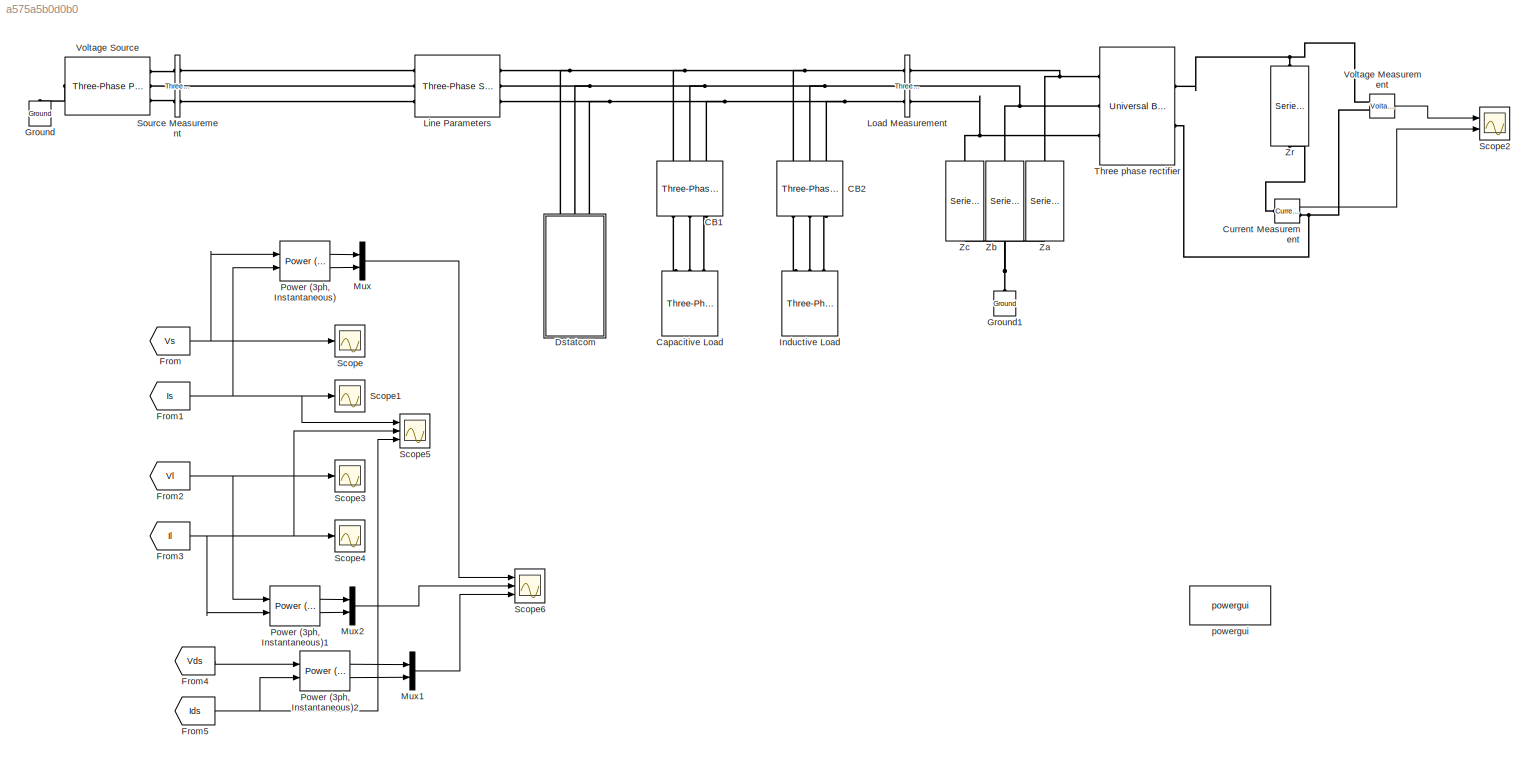
MODEL slx_a575a5b0d0b0
KIND model
CONFIG AbsTol = auto
CONFIG EnableMultiTasking = off
CONFIG FixedStep = auto
CONFIG MaxStep = auto
CONFIG MinStep = auto
CONFIG RelTol = 1e-3
CONFIG SampleTimeConstraint = Unconstrained
CONFIG Solver = VariableStepAuto
CONFIG SolverName = VariableStepAuto
CONFIG StartTime = 0.0
CONFIG StopTime = 2
BLOCK [Reference] CB1  REF=powerlib/Elements/Three-Phase Breaker
  Ports = [0, 0, 0, 0, 0, 3, 3]
  SourceBlock = powerlib/Elements/Three-Phase Breaker
  SourceProductBaseCode = PS
  SourceProductName = Simscape Electrical
  SourceType = Three-Phase Breaker
BLOCK [Reference] CB2   REF=powerlib/Elements/Three-Phase Breaker
  Ports = [0, 0, 0, 0, 0, 3, 3]
  SourceBlock = powerlib/Elements/Three-Phase Breaker
  SourceProductBaseCode = PS
  SourceProductName = Simscape Electrical
  SourceType = Three-Phase Breaker
BLOCK [Reference] Capacitive Load  REF=powerlib/Elements/Three-Phase
Series RLC Load
  AttributesFormatString = \n
  Ports = [0, 0, 0, 0, 0, 3]
  SourceBlock = powerlib/Elements/Three-Phase\nSeries RLC Load
  SourceProductBaseCode = PS
  SourceProductName = Simscape Electrical
  SourceType = Three-Phase Series RLC Load
BLOCK [Reference] Current Measurement  REF=powerlib/Measurements/Current Measurement
  Ports = [0, 1, 0, 0, 0, 1, 1]
  SourceBlock = powerlib/Measurements/Current Measurement
  SourceProductBaseCode = PS
  SourceProductName = Simscape Electrical
  SourceType = Current Measurement
  UserDataPersistent = on
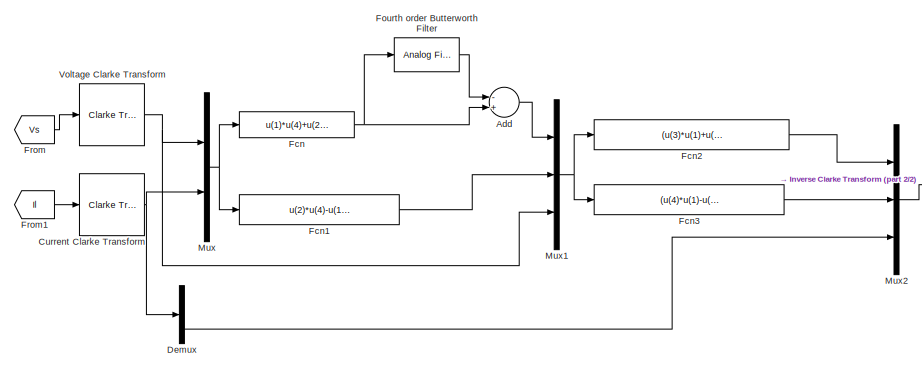
[diagram: Dstatcom - part 1/2, top left region]
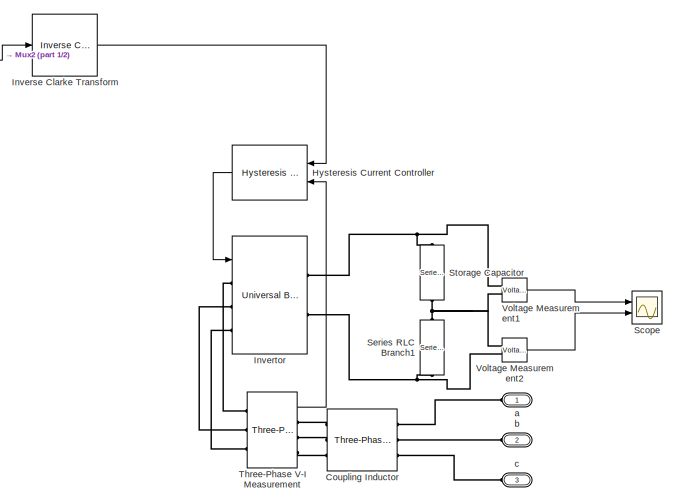
[diagram: Dstatcom - part 2/2, right side, full height]
BLOCK [SubSystem] Dstatcom
  Ports = [0, 0, 0, 0, 0, 3]
  RequestExecContextInheritance = off
BLOCK [Sum] Dstatcom/Add
  InputSameDT = off
  Inputs = -+
  OutDataTypeStr = Inherit: Inherit via internal rule
  Ports = [2, 1]
  SaturateOnIntegerOverflow = off
BLOCK [Reference] Dstatcom/Coupling Inductor   REF=powerlib/Elements/Three-Phase
Series RLC Branch
  AttributesFormatString = \n
  Ports = [0, 0, 0, 0, 0, 3, 3]
  SourceBlock = powerlib/Elements/Three-Phase\nSeries RLC Branch
  SourceProductBaseCode = PS
  SourceProductName = Simscape Electrical
  SourceType = Three-Phase Series RLC Branch
BLOCK [Reference] Dstatcom/Current Clarke Transform  REF=eeTransforms/Clarke Transform
  Ports = [1, 1]
  SourceBlock = eeTransforms/Clarke Transform
  SourceProductBaseCode = PS
  SourceProductName = Simscape Electrical
  SourceType = Clarke Transform
BLOCK [Demux] Dstatcom/Demux
  DisplayOption = bar
  Outputs = 3
  Ports = [1, 3]
BLOCK [Fcn] Dstatcom/Fcn
  Expr = u(1)*u(4)+u(2)*u(5)
BLOCK [Fcn] Dstatcom/Fcn1
  Expr = u(2)*u(4)-u(1)*u(5)
BLOCK [Fcn] Dstatcom/Fcn2
  Expr = (u(3)*u(1)+u(4)*u(2))*((1)/(u(3)^2+u(4)^2))
BLOCK [Fcn] Dstatcom/Fcn3
  Expr = (u(4)*u(1)-u(3)*u(2))*((1)/(u(3)^2+u(4)^2))
BLOCK [Reference] Dstatcom/Fourth order Butterworth Filter  REF=dsparch4/Analog
Filter Design
  Ports = [1, 1]
  SourceBlock = dsparch4/Analog\nFilter Design
  SourceProductBaseCode = DS
  SourceProductName = DSP System Toolbox
  SourceType = Analog Filter Design
BLOCK [From] Dstatcom/From
  GotoTag = Vs
  TagVisibility = global
BLOCK [From] Dstatcom/From1
  GotoTag = Il
  TagVisibility = global
BLOCK [Reference] Dstatcom/Hysteresis Current Controller   REF=eeHysteresisControl/Hysteresis Current
Controller
(Three-Phase)
  Ports = [2, 1]
  SourceBlock = eeHysteresisControl/Hysteresis Current\nController\n(Three-Phase)
  SourceProductBaseCode = PS
  SourceProductName = Simscape Electrical
  SourceType = Hysteresis Current Controller (Three-Phase)
BLOCK [Reference] Dstatcom/Inverse Clarke Transform  REF=eeTransforms/Inverse
Clarke Transform
  Ports = [1, 1]
  SourceBlock = eeTransforms/Inverse\nClarke Transform
  SourceProductBaseCode = PS
  SourceProductName = Simscape Electrical
  SourceType = Inverse Clarke Transform
BLOCK [Reference] Dstatcom/Invertor  REF=powerlib/Power
Electronics/Universal Bridge
  Ports = [1, 0, 0, 0, 0, 3, 2]
  SourceBlock = powerlib/Power\nElectronics/Universal Bridge
  SourceProductBaseCode = PS
  SourceProductName = Simscape Electrical
  SourceType = Universal Bridge
BLOCK [Mux] Dstatcom/Mux
  DisplayOption = bar
  Inputs = 2
  Ports = [2, 1]
BLOCK [Mux] Dstatcom/Mux1
  DisplayOption = bar
  Inputs = 3
  Ports = [3, 1]
BLOCK [Mux] Dstatcom/Mux2
  DisplayOption = bar
  Inputs = 3
  Ports = [3, 1]
BLOCK [Scope] Dstatcom/Scope
  Floating = off
  NumInputPorts = 2
  Ports = [2]
  ScopeSpecificationString = Simulink.scopes.TimeScopeBlockCfg('CurrentConfiguration', extmgr.ConfigurationSet(extmgr.Configuration('Core','General UI',true),extmgr.Configuration('Core','Source UI',true),extmgr.Configuration('Sources','WiredSimulink',true,'DataLoggingVariableName','ScopeData3'),extmgr.Configuration('Visuals','Time Domain',true),extmgr.Configuration('Tools','Plot Navigation',true),extmgr.Configuration('Tools',...<+40ch>
BLOCK [Reference] Dstatcom/Series RLC Branch1  REF=powerlib/Elements/Series RLC Branch
  Ports = [0, 0, 0, 0, 0, 1, 1]
  SourceBlock = powerlib/Elements/Series RLC Branch
  SourceProductBaseCode = PS
  SourceProductName = Simscape Electrical
  SourceType = Series RLC Branch
BLOCK [Reference] Dstatcom/Storage Capacitor  REF=powerlib/Elements/Series RLC Branch
  Ports = [0, 0, 0, 0, 0, 1, 1]
  SourceBlock = powerlib/Elements/Series RLC Branch
  SourceProductBaseCode = PS
  SourceProductName = Simscape Electrical
  SourceType = Series RLC Branch
BLOCK [Reference] Dstatcom/Three-Phase V-I Measurement  REF=powerlib/Measurements/Three-Phase
V-I Measurement
  Ports = [0, 1, 0, 0, 0, 3, 3]
  SourceBlock = powerlib/Measurements/Three-Phase\nV-I Measurement
  SourceProductBaseCode = PS
  SourceProductName = Simscape Electrical
  SourceType = Three-Phase VI Measurement
BLOCK [Reference] Dstatcom/Voltage Clarke Transform  REF=eeTransforms/Clarke Transform
  Ports = [1, 1]
  SourceBlock = eeTransforms/Clarke Transform
  SourceProductBaseCode = PS
  SourceProductName = Simscape Electrical
  SourceType = Clarke Transform
BLOCK [Reference] Dstatcom/Voltage Measurement1  REF=powerlib/Measurements/Voltage Measurement
  Ports = [0, 1, 0, 0, 0, 2]
  SourceBlock = powerlib/Measurements/Voltage Measurement
  SourceProductBaseCode = PS
  SourceProductName = Simscape Electrical
  SourceType = Voltage Measurement
  UserDataPersistent = on
BLOCK [Reference] Dstatcom/Voltage Measurement2  REF=powerlib/Measurements/Voltage Measurement
  Ports = [0, 1, 0, 0, 0, 2]
  SourceBlock = powerlib/Measurements/Voltage Measurement
  SourceProductBaseCode = PS
  SourceProductName = Simscape Electrical
  SourceType = Voltage Measurement
  UserDataPersistent = on
BLOCK [PMIOPort] Dstatcom/a
  Side = Left
BLOCK [PMIOPort] Dstatcom/b
  Port = 2
  Side = Left
BLOCK [PMIOPort] Dstatcom/c
  Port = 3
  Side = Left
BLOCK [From] From
  GotoTag = Vs
  TagVisibility = global
BLOCK [From] From1
  GotoTag = Is
  TagVisibility = global
BLOCK [From] From2
  GotoTag = Vl
  TagVisibility = global
BLOCK [From] From3
  GotoTag = Il
  TagVisibility = global
BLOCK [From] From4
  GotoTag = Vds
BLOCK [From] From5
  GotoTag = Ids
BLOCK [Reference] Ground  REF=powerlib/Elements/Ground
  Ports = [0, 0, 0, 0, 0, 1]
  SourceBlock = powerlib/Elements/Ground
  SourceProductBaseCode = PS
  SourceProductName = Simscape Electrical
  SourceType = Ground
BLOCK [Reference] Ground1  REF=powerlib/Elements/Ground
  Ports = [0, 0, 0, 0, 0, 1]
  SourceBlock = powerlib/Elements/Ground
  SourceProductBaseCode = PS
  SourceProductName = Simscape Electrical
  SourceType = Ground
BLOCK [Reference] Inductive Load  REF=powerlib/Elements/Three-Phase
Series RLC Load
  AttributesFormatString = \n
  Ports = [0, 0, 0, 0, 0, 3]
  SourceBlock = powerlib/Elements/Three-Phase\nSeries RLC Load
  SourceProductBaseCode = PS
  SourceProductName = Simscape Electrical
  SourceType = Three-Phase Series RLC Load
BLOCK [Reference] Line Parameters  REF=powerlib/Elements/Three-Phase
Series RLC Branch
  AttributesFormatString = \n
  Ports = [0, 0, 0, 0, 0, 3, 3]
  SourceBlock = powerlib/Elements/Three-Phase\nSeries RLC Branch
  SourceProductBaseCode = PS
  SourceProductName = Simscape Electrical
  SourceType = Three-Phase Series RLC Branch
BLOCK [Reference] Load Measurement  REF=powerlib/Measurements/Three-Phase
V-I Measurement
  Ports = [0, 0, 0, 0, 0, 3, 3]
  SourceBlock = powerlib/Measurements/Three-Phase\nV-I Measurement
  SourceProductBaseCode = PS
  SourceProductName = Simscape Electrical
  SourceType = Three-Phase VI Measurement
BLOCK [Mux] Mux
  DisplayOption = bar
  Inputs = 2
  Ports = [2, 1]
BLOCK [Mux] Mux1
  DisplayOption = bar
  Inputs = 2
  Ports = [2, 1]
BLOCK [Mux] Mux2
  DisplayOption = bar
  Inputs = 2
  Ports = [2, 1]
BLOCK [Reference] Power (3ph, Instantaneous)  REF=powerlib_meascontrol/Measurements/Power
(3ph, Instantaneous)
  Ports = [2, 2]
  SourceBlock = powerlib_meascontrol/Measurements/Power\n(3ph, Instantaneous)
  SourceProductBaseCode = PS
  SourceProductName = Simscape Electrical
  SourceType = Power (3ph, Instantaneous)
BLOCK [Reference] Power (3ph, Instantaneous)1  REF=powerlib_meascontrol/Measurements/Power
(3ph, Instantaneous)
  Ports = [2, 2]
  SourceBlock = powerlib_meascontrol/Measurements/Power\n(3ph, Instantaneous)
  SourceProductBaseCode = PS
  SourceProductName = Simscape Electrical
  SourceType = Power (3ph, Instantaneous)
BLOCK [Reference] Power (3ph, Instantaneous)2  REF=powerlib_meascontrol/Measurements/Power
(3ph, Instantaneous)
  Ports = [2, 2]
  SourceBlock = powerlib_meascontrol/Measurements/Power\n(3ph, Instantaneous)
  SourceProductBaseCode = PS
  SourceProductName = Simscape Electrical
  SourceType = Power (3ph, Instantaneous)
BLOCK [Scope] Scope
  Floating = off
  NumInputPorts = 1
  Ports = [1]
  ScopeSpecificationString = Simulink.scopes.TimeScopeBlockCfg('CurrentConfiguration', extmgr.ConfigurationSet(extmgr.Configuration('Core','General UI',true),extmgr.Configuration('Core','Source UI',true),extmgr.Configuration('Sources','WiredSimulink',true,'DataLoggingVariableName','Voltagesource','DataLogging',true,'DataLoggingDecimateData',true,'DataLoggingDecimation','1'),extmgr.Configuration('Visuals','Time Domain',true,'S...<+1538ch>
BLOCK [Scope] Scope1
  Floating = off
  NumInputPorts = 1
  Ports = [1]
  ScopeSpecificationString = Simulink.scopes.TimeScopeBlockCfg('CurrentConfiguration', extmgr.ConfigurationSet(extmgr.Configuration('Core','General UI',true),extmgr.Configuration('Core','Source UI',true),extmgr.Configuration('Sources','WiredSimulink',true,'DataLoggingVariableName','Sourcecurrent','DataLogging',true,'DataLoggingDecimateData',true,'DataLoggingDecimation','1'),extmgr.Configuration('Visuals','Time Domain',true,'S...<+1505ch>
BLOCK [Scope] Scope2
  Floating = off
  NumInputPorts = 2
  Ports = [2]
  ScopeSpecificationString = Simulink.scopes.TimeScopeBlockCfg('CurrentConfiguration', extmgr.ConfigurationSet(extmgr.Configuration('Core','General UI',true),extmgr.Configuration('Core','Source UI',true),extmgr.Configuration('Sources','WiredSimulink',true,'DataLoggingVariableName','ScopeData2'),extmgr.Configuration('Visuals','Time Domain',true,'SerializedDisplays',{struct('MinYLimReal','217.99825','MaxYLimReal','290.8869','YL...<+2004ch>
BLOCK [Scope] Scope3
  Floating = off
  NumInputPorts = 1
  Ports = [1]
  ScopeSpecificationString = Simulink.scopes.TimeScopeBlockCfg('CurrentConfiguration', extmgr.ConfigurationSet(extmgr.Configuration('Core','General UI',true),extmgr.Configuration('Core','Source UI',true),extmgr.Configuration('Sources','WiredSimulink',true,'DataLoggingVariableName','ScopeData3'),extmgr.Configuration('Visuals','Time Domain',true,'SerializedDisplays',{struct('MinYLimReal','-200.59903','MaxYLimReal','200.69755','...<+1542ch>
BLOCK [Scope] Scope4
  Floating = off
  NumInputPorts = 1
  Ports = [1]
  ScopeSpecificationString = Simulink.scopes.TimeScopeBlockCfg('CurrentConfiguration', extmgr.ConfigurationSet(extmgr.Configuration('Core','General UI',true),extmgr.Configuration('Core','Source UI',true),extmgr.Configuration('Sources','WiredSimulink',true,'DataLoggingVariableName','loadcurrent','DataLogging',true,'DataLoggingDecimateData',true,'DataLoggingDecimation','1'),extmgr.Configuration('Visuals','Time Domain',true,'Ser...<+1474ch>
BLOCK [Scope] Scope5
  Floating = off
  NumInputPorts = 3
  Ports = [3]
  ScopeSpecificationString = Simulink.scopes.TimeScopeBlockCfg('CurrentConfiguration', extmgr.ConfigurationSet(extmgr.Configuration('Core','General UI',true),extmgr.Configuration('Core','Source UI',true),extmgr.Configuration('Sources','WiredSimulink',true,'DataLoggingVariableName','k','DataLogging',true,'DataLoggingDecimateData',true,'DataLoggingDecimation','1'),extmgr.Configuration('Visuals','Time Domain',true,'SerializedDis...<+3070ch>
BLOCK [Scope] Scope6
  Floating = off
  NumInputPorts = 3
  Ports = [3]
  ScopeSpecificationString = Simulink.scopes.TimeScopeBlockCfg('CurrentConfiguration', extmgr.ConfigurationSet(extmgr.Configuration('Core','General UI',true),extmgr.Configuration('Core','Source UI',true),extmgr.Configuration('Sources','WiredSimulink',true,'DataLoggingVariableName','ScopeData2'),extmgr.Configuration('Visuals','Time Domain',true,'SerializedDisplays',{struct('MinYLimReal','-1982.63584','MaxYLimReal','6402.44515'...<+2875ch>
BLOCK [Reference] Source Measurement  REF=powerlib/Measurements/Three-Phase
V-I Measurement
  Ports = [0, 0, 0, 0, 0, 3, 3]
  SourceBlock = powerlib/Measurements/Three-Phase\nV-I Measurement
  SourceProductBaseCode = PS
  SourceProductName = Simscape Electrical
  SourceType = Three-Phase VI Measurement
BLOCK [Reference] Three phase rectifier  REF=powerlib/Power
Electronics/Universal Bridge
  Ports = [0, 0, 0, 0, 0, 3, 2]
  SourceBlock = powerlib/Power\nElectronics/Universal Bridge
  SourceProductBaseCode = PS
  SourceProductName = Simscape Electrical
  SourceType = Universal Bridge
BLOCK [Reference] Voltage Measurement  REF=powerlib/Measurements/Voltage Measurement
  Ports = [0, 1, 0, 0, 0, 2]
  SourceBlock = powerlib/Measurements/Voltage Measurement
  SourceProductBaseCode = PS
  SourceProductName = Simscape Electrical
  SourceType = Voltage Measurement
  UserDataPersistent = on
BLOCK [Reference] Voltage Source  REF=powerlib/Electrical
Sources/Three-Phase
Programmable
Voltage Source
  Ports = [0, 0, 0, 0, 0, 1, 3]
  SourceBlock = powerlib/Electrical\nSources/Three-Phase\nProgrammable\nVoltage Source
  SourceProductBaseCode = PS
  SourceProductName = Simscape Electrical
  SourceType = Three-Phase Programmable Voltage Source
BLOCK [Reference] Za  REF=powerlib/Elements/Series RLC Branch
  Ports = [0, 0, 0, 0, 0, 1, 1]
  SourceBlock = powerlib/Elements/Series RLC Branch
  SourceProductBaseCode = PS
  SourceProductName = Simscape Electrical
  SourceType = Series RLC Branch
BLOCK [Reference] Zb  REF=powerlib/Elements/Series RLC Branch
  Ports = [0, 0, 0, 0, 0, 1, 1]
  SourceBlock = powerlib/Elements/Series RLC Branch
  SourceProductBaseCode = PS
  SourceProductName = Simscape Electrical
  SourceType = Series RLC Branch
BLOCK [Reference] Zc  REF=powerlib/Elements/Series RLC Branch
  Ports = [0, 0, 0, 0, 0, 1, 1]
  SourceBlock = powerlib/Elements/Series RLC Branch
  SourceProductBaseCode = PS
  SourceProductName = Simscape Electrical
  SourceType = Series RLC Branch
BLOCK [Reference] Zr  REF=powerlib/Elements/Series RLC Branch
  Ports = [0, 0, 0, 0, 0, 1, 1]
  SourceBlock = powerlib/Elements/Series RLC Branch
  SourceProductBaseCode = PS
  SourceProductName = Simscape Electrical
  SourceType = Series RLC Branch
BLOCK [Reference] powergui  REF=powerlib/powergui
  Ports = []
  Priority = 1
  SourceBlock = powerlib/powergui
  SourceProductBaseCode = PS
  SourceProductName = Simscape Electrical
  SourceType = PSB option menu block
LINE Current Measurement:1 -> Scope2:2
LINE Dstatcom/Add:1 -> Dstatcom/Mux1:1
NET Dstatcom/Current Clarke Transform:1 -> Dstatcom/Demux:1, Dstatcom/Mux:2
LINE Dstatcom/Demux:3 -> Dstatcom/Mux2:3
LINE Dstatcom/Fcn1:1 -> Dstatcom/Mux1:2
LINE Dstatcom/Fcn2:1 -> Dstatcom/Mux2:1
LINE Dstatcom/Fcn3:1 -> Dstatcom/Mux2:2
NET Dstatcom/Fcn:1 -> Dstatcom/Add:2, Dstatcom/Fourth order Butterworth Filter:1
LINE Dstatcom/Fourth order Butterworth Filter:1 -> Dstatcom/Add:1
LINE Dstatcom/From1:1 -> Dstatcom/Current Clarke Transform:1
LINE Dstatcom/From:1 -> Dstatcom/Voltage Clarke Transform:1
LINE Dstatcom/Hysteresis Current Controller :1 -> Dstatcom/Invertor:1
LINE Dstatcom/Inverse Clarke Transform:1 -> Dstatcom/Hysteresis Current Controller :1
NET Dstatcom/Mux1:1 -> Dstatcom/Fcn2:1, Dstatcom/Fcn3:1
LINE Dstatcom/Mux2:1 -> Dstatcom/Inverse Clarke Transform:1
NET Dstatcom/Mux:1 -> Dstatcom/Fcn1:1, Dstatcom/Fcn:1
LINE Dstatcom/Three-Phase V-I Measurement:1 -> Dstatcom/Hysteresis Current Controller :2
NET Dstatcom/Voltage Clarke Transform:1 -> Dstatcom/Mux1:3, Dstatcom/Mux:1
LINE Dstatcom/Voltage Measurement1:1 -> Dstatcom/Scope:1
LINE Dstatcom/Voltage Measurement2:1 -> Dstatcom/Scope:2
NET From1:1 -> Power (3ph, Instantaneous):2, Scope1:1, Scope5:1
NET From2:1 -> Power (3ph, Instantaneous)1:1, Scope3:1
NET From3:1 -> Power (3ph, Instantaneous)1:2, Scope4:1, Scope5:2
LINE From4:1 -> Power (3ph, Instantaneous)2:1
NET From5:1 -> Power (3ph, Instantaneous)2:2, Scope5:3
NET From:1 -> Power (3ph, Instantaneous):1, Scope:1
LINE Mux1:1 -> Scope6:3
LINE Mux2:1 -> Scope6:2
LINE Mux:1 -> Scope6:1
LINE Power (3ph, Instantaneous)1:1 -> Mux2:1
LINE Power (3ph, Instantaneous)1:2 -> Mux2:2
LINE Power (3ph, Instantaneous)2:1 -> Mux1:1
LINE Power (3ph, Instantaneous)2:2 -> Mux1:2
LINE Power (3ph, Instantaneous):1 -> Mux:1
LINE Power (3ph, Instantaneous):2 -> Mux:2
LINE Voltage Measurement:1 -> Scope2:1
PLINE CB1:LConn1 -- Capacitive Load:LConn1
PLINE CB1:LConn2 -- Capacitive Load:LConn2
PLINE CB1:LConn3 -- Capacitive Load:LConn3
PNET net1: CB1:RConn1 -- CB2 :RConn1 -- Dstatcom:LConn1 -- Line Parameters:RConn1 -- Load Measurement:LConn1
PNET net2: CB1:RConn2 -- CB2 :RConn2 -- Dstatcom:LConn2 -- Line Parameters:RConn2 -- Load Measurement:LConn2
PNET net3: CB1:RConn3 -- CB2 :RConn3 -- Dstatcom:LConn3 -- Line Parameters:RConn3 -- Load Measurement:LConn3
PLINE CB2 :LConn1 -- Inductive Load:LConn1
PLINE CB2 :LConn2 -- Inductive Load:LConn2
PLINE CB2 :LConn3 -- Inductive Load:LConn3
PLINE Current Measurement:LConn1 -- Zr:RConn1
PNET net4: Current Measurement:RConn1 -- Three phase rectifier:RConn2 -- Voltage Measurement:LConn2
PLINE Dstatcom/Coupling Inductor :LConn1 -- Dstatcom/Three-Phase V-I Measurement:RConn1
PLINE Dstatcom/Coupling Inductor :LConn2 -- Dstatcom/Three-Phase V-I Measurement:RConn2
PLINE Dstatcom/Coupling Inductor :LConn3 -- Dstatcom/Three-Phase V-I Measurement:RConn3
PLINE Dstatcom/Coupling Inductor :RConn1 -- Dstatcom/a:RConn1
PLINE Dstatcom/Coupling Inductor :RConn2 -- Dstatcom/b:RConn1
PLINE Dstatcom/Coupling Inductor :RConn3 -- Dstatcom/c:RConn1
PLINE Dstatcom/Invertor:LConn1 -- Dstatcom/Three-Phase V-I Measurement:LConn1
PLINE Dstatcom/Invertor:LConn2 -- Dstatcom/Three-Phase V-I Measurement:LConn2
PLINE Dstatcom/Invertor:LConn3 -- Dstatcom/Three-Phase V-I Measurement:LConn3
PNET net5: Dstatcom/Invertor:RConn1 -- Dstatcom/Storage Capacitor:LConn1 -- Dstatcom/Voltage Measurement1:LConn1
PNET net6: Dstatcom/Invertor:RConn2 -- Dstatcom/Series RLC Branch1:RConn1 -- Dstatcom/Voltage Measurement2:LConn2
PNET net7: Dstatcom/Series RLC Branch1:LConn1 -- Dstatcom/Storage Capacitor:RConn1 -- Dstatcom/Voltage Measurement1:LConn2 -- Dstatcom/Voltage Measurement2:LConn1
PNET net8: Ground1:LConn1 -- Za:LConn1 -- Zb:LConn1 -- Zc:LConn1
PLINE Ground:LConn1 -- Voltage Source:LConn1
PLINE Line Parameters:LConn1 -- Source Measurement:RConn1
PLINE Line Parameters:LConn2 -- Source Measurement:RConn2
PLINE Line Parameters:LConn3 -- Source Measurement:RConn3
PNET net9: Load Measurement:RConn1 -- Three phase rectifier:LConn1 -- Za:RConn1
PNET net10: Load Measurement:RConn2 -- Three phase rectifier:LConn2 -- Zb:RConn1
PNET net11: Load Measurement:RConn3 -- Three phase rectifier:LConn3 -- Zc:RConn1
PLINE Source Measurement:LConn1 -- Voltage Source:RConn1
PLINE Source Measurement:LConn2 -- Voltage Source:RConn2
PLINE Source Measurement:LConn3 -- Voltage Source:RConn3
PNET net12: Three phase rectifier:RConn1 -- Voltage Measurement:LConn1 -- Zr:LConn1
note: NET lines group one-source signal fan-out (src -> all destinations, sorted); 1:1 wires keep LINE; PNET lines group multi-terminal physical nets as a canonical sorted terminal list (undirected conserving connections); 2-terminal nets keep the pairwise PLINE form
